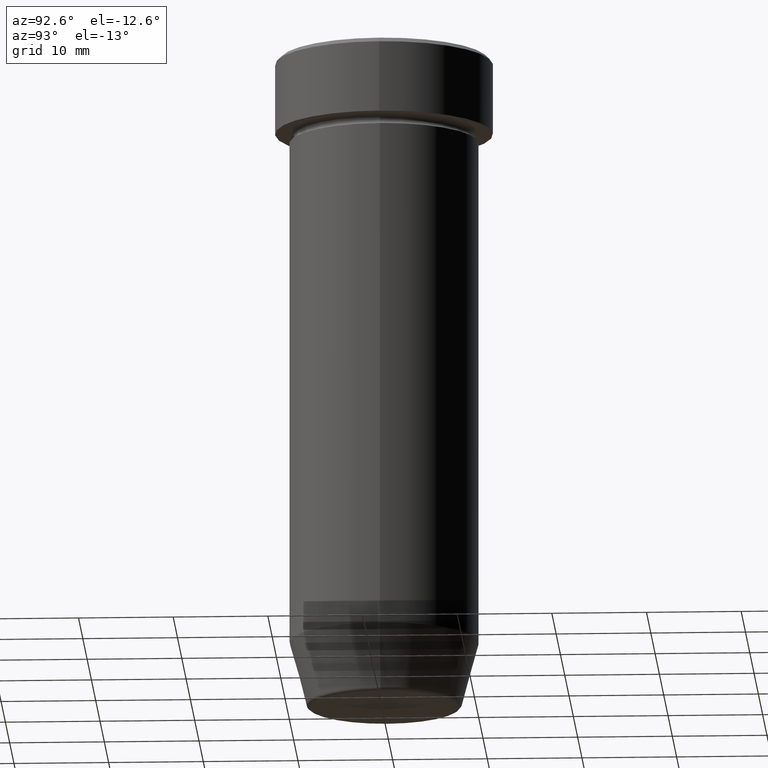
[diagram: clean part render]
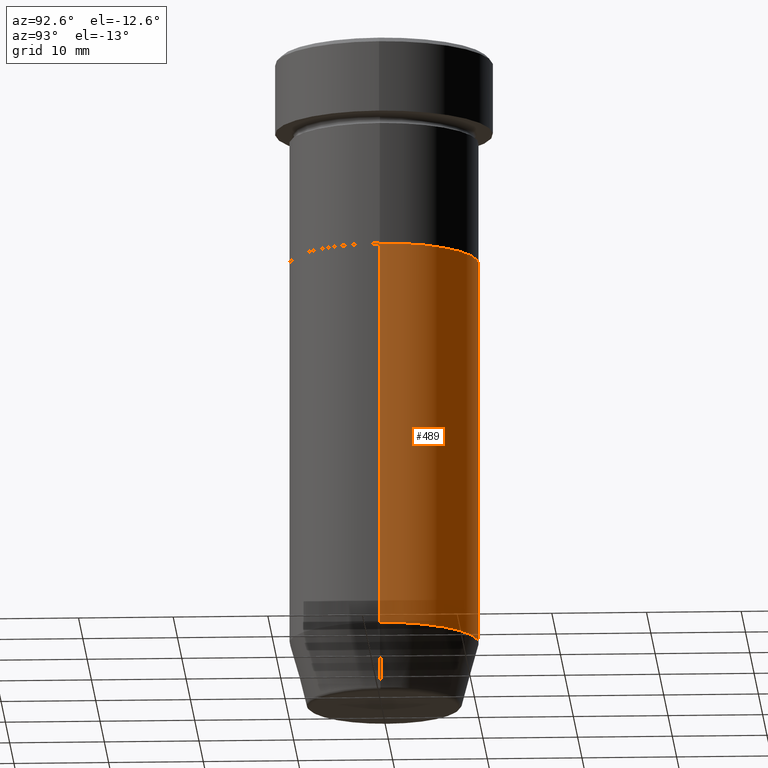
[diagram: same view with one face highlighted and labeled with its STEP entity id]
A machine part, auxiliary view. The second image highlights one B-rep face of the part: STEP entity #489.
In plain terms, the highlighted cylindrical surface (partial cylindrical patch) has radius 10 mm, axis along (-0, -0, 1).
Its self-contained STEP definition (entity closure, byte-faithful):
#1 = ORIENTED_EDGE ( 'NONE', *, *, #95, .F. ) ;
#19 = EDGE_CURVE ( 'NONE', #156, #31, #550, .T. ) ;
#27 = EDGE_CURVE ( 'NONE', #464, #119, #145, .T. ) ;
#31 = VERTEX_POINT ( 'NONE', #83 ) ;
#35 = VECTOR ( 'NONE', #276, 1000.000000000000000 ) ;
#37 = ORIENTED_EDGE ( 'NONE', *, *, #437, .T. ) ;
#44 = DIRECTION ( 'NONE',  ( 1.000000000000000000, 0.000000000000000000, 0.000000000000000000 ) ) ;
#83 = CARTESIAN_POINT ( 'NONE',  ( -9.999999999999998224, 1.224646799147353059E-15, -63.00000000000000000 ) ) ;
#89 = CARTESIAN_POINT ( 'NONE',  ( 0.000000000000000000, 0.000000000000000000, -63.00000000000000000 ) ) ;
#91 = CARTESIAN_POINT ( 'NONE',  ( 0.000000000000000000, 0.000000000000000000, -22.00000000000000000 ) ) ;
#95 = EDGE_CURVE ( 'NONE', #156, #464, #229, .T. ) ;
#119 = VERTEX_POINT ( 'NONE', #410 ) ;
#130 = FACE_OUTER_BOUND ( 'NONE', #487, .T. ) ;
#145 = CIRCLE ( 'NONE', #483, 10.00000000000000000 ) ;
#156 = VERTEX_POINT ( 'NONE', #431 ) ;
#183 = CARTESIAN_POINT ( 'NONE',  ( 0.000000000000000000, 0.000000000000000000, 0.000000000000000000 ) ) ;
#188 = DIRECTION ( 'NONE',  ( -0.000000000000000000, -0.000000000000000000, 1.000000000000000000 ) ) ;
#223 = DIRECTION ( 'NONE',  ( -0.000000000000000000, -0.000000000000000000, 1.000000000000000000 ) ) ;
#229 = LINE ( 'NONE', #269, #35 ) ;
#234 = VECTOR ( 'NONE', #443, 1000.000000000000000 ) ;
#269 = CARTESIAN_POINT ( 'NONE',  ( 9.999999999999998224, 0.000000000000000000, 0.000000000000000000 ) ) ;
#275 = CYLINDRICAL_SURFACE ( 'NONE', #460, 9.999999999999998224 ) ;
#276 = DIRECTION ( 'NONE',  ( -0.000000000000000000, -0.000000000000000000, 1.000000000000000000 ) ) ;
#368 = CARTESIAN_POINT ( 'NONE',  ( 10.00000000000000000, 0.000000000000000000, -22.00000000000000000 ) ) ;
#372 = DIRECTION ( 'NONE',  ( 1.000000000000000000, 0.000000000000000000, 0.000000000000000000 ) ) ;
#410 = CARTESIAN_POINT ( 'NONE',  ( -10.00000000000000000, 1.224646799147353256E-15, -22.00000000000000000 ) ) ;
#411 = AXIS2_PLACEMENT_3D ( 'NONE', #89, #457, #44 ) ;
#431 = CARTESIAN_POINT ( 'NONE',  ( 9.999999999999998224, 0.000000000000000000, -63.00000000000000000 ) ) ;
#432 = ORIENTED_EDGE ( 'NONE', *, *, #19, .T. ) ;
#437 = EDGE_CURVE ( 'NONE', #31, #119, #578, .T. ) ;
#443 = DIRECTION ( 'NONE',  ( -0.000000000000000000, -0.000000000000000000, 1.000000000000000000 ) ) ;
#457 = DIRECTION ( 'NONE',  ( -0.000000000000000000, -0.000000000000000000, 1.000000000000000000 ) ) ;
#460 = AXIS2_PLACEMENT_3D ( 'NONE', #183, #223, #372 ) ;
#464 = VERTEX_POINT ( 'NONE', #368 ) ;
#483 = AXIS2_PLACEMENT_3D ( 'NONE', #91, #188, #542 ) ;
#485 = ORIENTED_EDGE ( 'NONE', *, *, #27, .F. ) ;
#487 = EDGE_LOOP ( 'NONE', ( #432, #37, #485, #1 ) ) ;
#489 = ADVANCED_FACE ( 'NONE', ( #130 ), #275, .T. ) ;
#530 = CARTESIAN_POINT ( 'NONE',  ( -9.999999999999998224, 1.224646799147353059E-15, 0.000000000000000000 ) ) ;
#542 = DIRECTION ( 'NONE',  ( 1.000000000000000000, 0.000000000000000000, 0.000000000000000000 ) ) ;
#550 = CIRCLE ( 'NONE', #411, 9.999999999999998224 ) ;
#578 = LINE ( 'NONE', #530, #234 ) ;